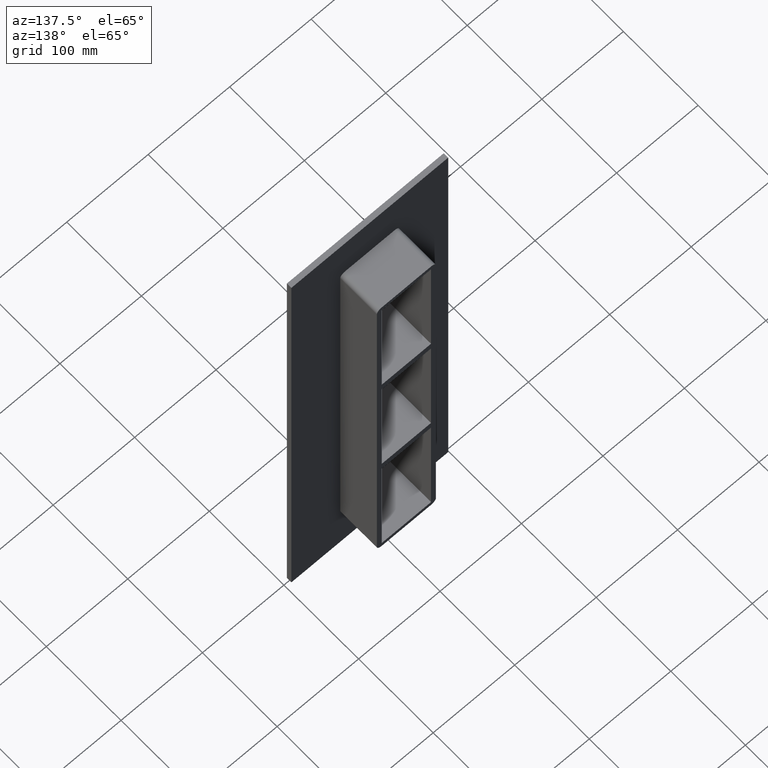
[diagram: clean part render]
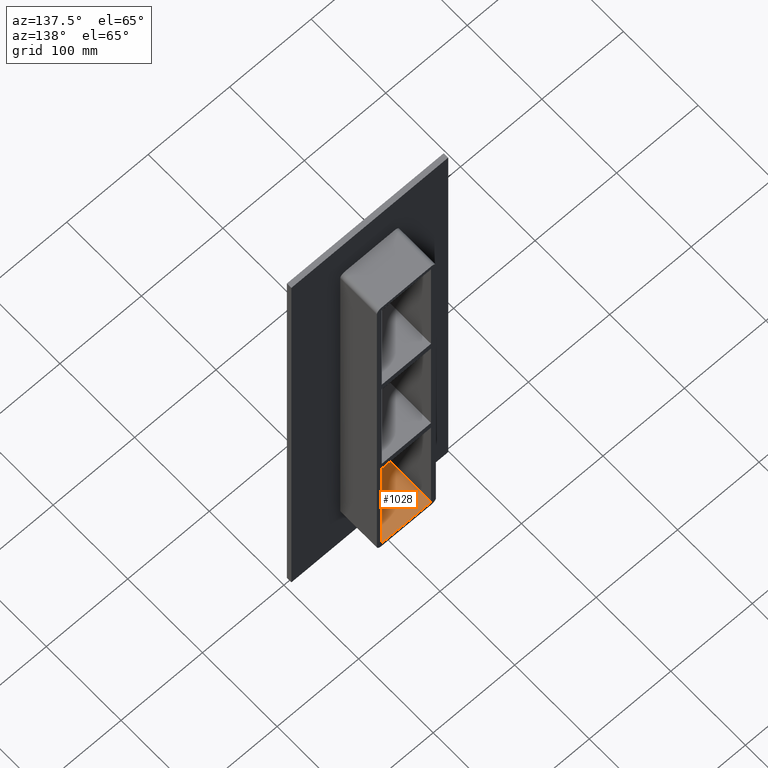
[diagram: same view with one face highlighted and labeled with its STEP entity id]
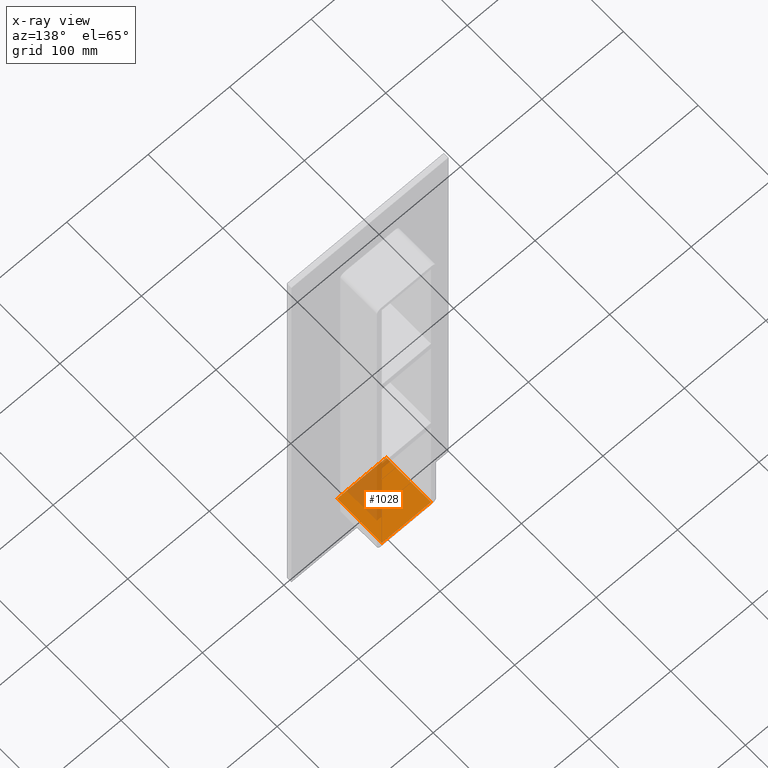
[diagram: x-ray of the same camera — body ghosted, the highlighted face saturated]
A machine part, auxiliary view. The second image highlights one B-rep face of the part: STEP entity #1028.
The next image is the same camera in x-ray: the body ghosted, the highlighted face saturated — about 29% of this face is hidden behind the body in this view.
In plain terms, the highlighted planar face has unit normal (0, 0, -1).
Its self-contained STEP definition (entity closure, byte-faithful):
#340=CARTESIAN_POINT('',(30.250000000000004,55.0,-249.24999999999997));
#341=VERTEX_POINT('',#340);
#348=CARTESIAN_POINT('',(30.250000000000004,-5.0,-249.24999999999997));
#349=VERTEX_POINT('',#348);
#350=CARTESIAN_POINT('',(30.250000000000004,55.0,-249.24999999999997));
#351=DIRECTION('',(0.0,-1.0,0.0));
#352=VECTOR('',#351,60.0);
#353=LINE('',#350,#352);
#354=EDGE_CURVE('',#341,#349,#353,.T.);
#659=CARTESIAN_POINT('',(-30.249999999999986,-5.0,-249.24999999999997));
#660=VERTEX_POINT('',#659);
#667=CARTESIAN_POINT('',(-30.249999999999986,55.0,-249.24999999999997));
#668=VERTEX_POINT('',#667);
#669=CARTESIAN_POINT('',(-30.249999999999986,-5.0,-249.24999999999997));
#670=DIRECTION('',(0.0,1.0,0.0));
#671=VECTOR('',#670,60.0);
#672=LINE('',#669,#671);
#673=EDGE_CURVE('',#660,#668,#672,.T.);
#1007=CARTESIAN_POINT('',(30.250000000000004,0.0,-249.24999999999997));
#1008=DIRECTION('',(0.0,0.0,-1.0));
#1009=DIRECTION('',(-1.0,0.0,0.0));
#1010=AXIS2_PLACEMENT_3D('',#1007,#1008,#1009);
#1011=PLANE('',#1010);
#1012=ORIENTED_EDGE('',*,*,#673,.F.);
#1013=CARTESIAN_POINT('',(30.250000000000004,-5.0,-249.24999999999997));
#1014=DIRECTION('',(-1.0,0.0,0.0));
#1015=VECTOR('',#1014,60.499999999999986);
#1016=LINE('',#1013,#1015);
#1017=EDGE_CURVE('',#349,#660,#1016,.T.);
#1018=ORIENTED_EDGE('',*,*,#1017,.F.);
#1019=ORIENTED_EDGE('',*,*,#354,.F.);
#1020=CARTESIAN_POINT('',(-30.249999999999986,55.0,-249.24999999999997));
#1021=DIRECTION('',(1.0,0.0,0.0));
#1022=VECTOR('',#1021,60.499999999999986);
#1023=LINE('',#1020,#1022);
#1024=EDGE_CURVE('',#668,#341,#1023,.T.);
#1025=ORIENTED_EDGE('',*,*,#1024,.F.);
#1026=EDGE_LOOP('',(#1012,#1018,#1019,#1025));
#1027=FACE_OUTER_BOUND('',#1026,.T.);
#1028=ADVANCED_FACE('',(#1027),#1011,.F.);